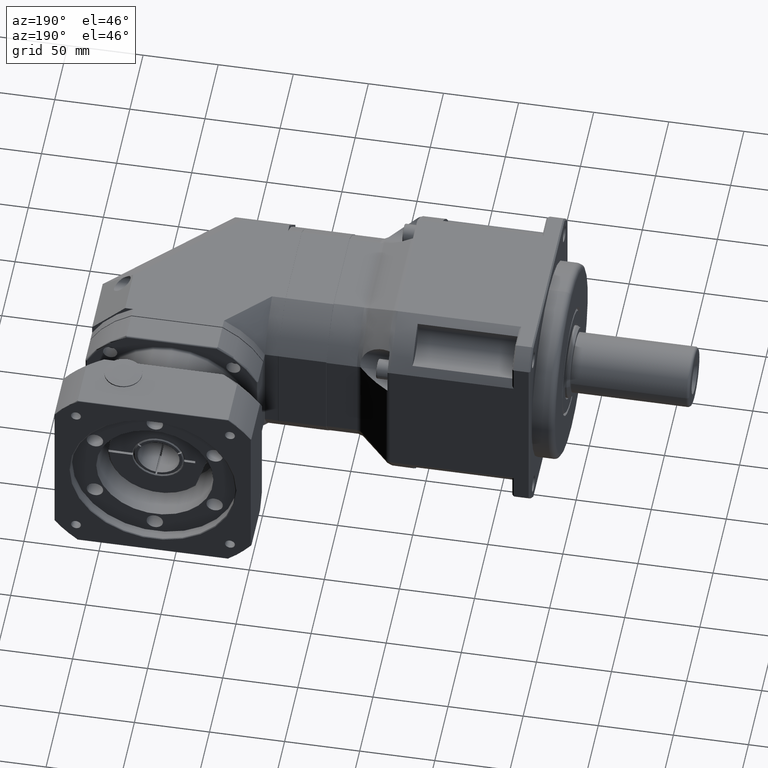
[diagram: clean part render]
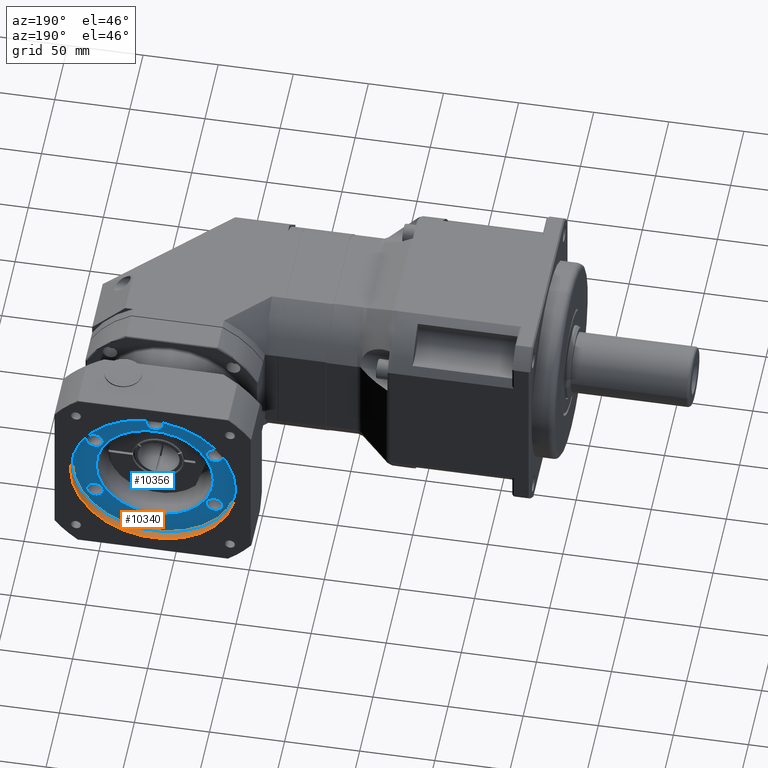
[diagram: same view with the hole feature highlighted: cylindrical wall and planar end face, labeled with their STEP entity ids]
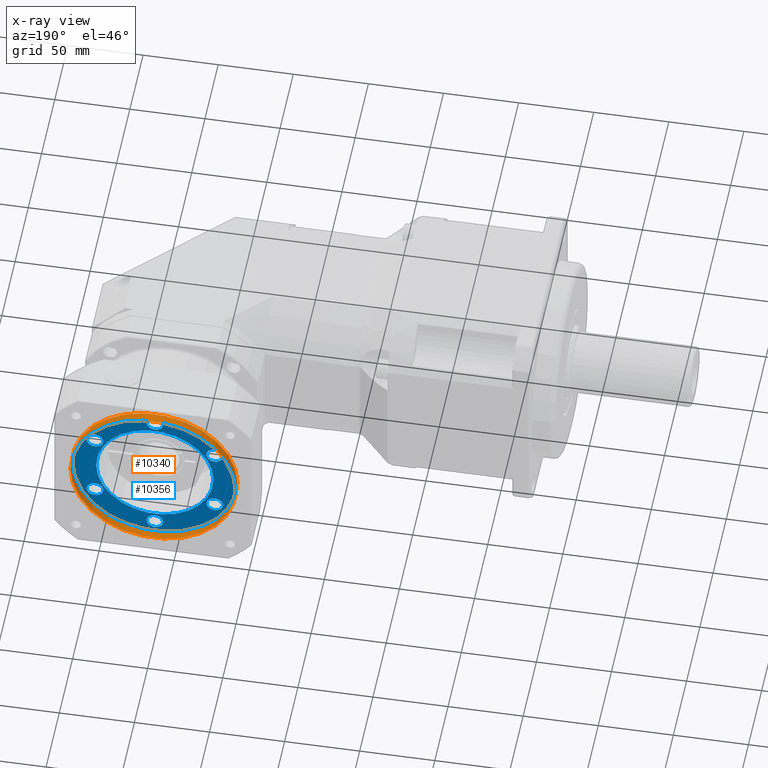
[diagram: x-ray of the same camera — body ghosted, the hole faces saturated]
A machine part, auxiliary view. The highlighted faces form one hole feature of diameter 110 mm: the cylindrical wall (entity #10340, orange) and its adjacent planar end face (entity #10356, blue) — they share a circular edge in the B-rep.
The next image is the same camera in x-ray (body ghosted, the hole faces saturated) — the bore reads through the body.
Wall:
#2075=FACE_BOUND('',#3385,.T.);
#2512=FACE_OUTER_BOUND('',#3384,.T.);
#3384=EDGE_LOOP('',(#7555));
#3385=EDGE_LOOP('',(#7556));
#4264=CIRCLE('',#11341,55.);
#4265=CIRCLE('',#11343,55.);
#4826=VERTEX_POINT('',#16306);
#4827=VERTEX_POINT('',#16309);
#5863=EDGE_CURVE('',#4826,#4826,#4264,.T.);
#5864=EDGE_CURVE('',#4827,#4827,#4265,.T.);
#7555=ORIENTED_EDGE('',*,*,#5864,.T.);
#7556=ORIENTED_EDGE('',*,*,#5863,.F.);
#9494=CYLINDRICAL_SURFACE('',#11342,55.);
#10340=ADVANCED_FACE('',(#2512,#2075),#9494,.F.);
#11341=AXIS2_PLACEMENT_3D('',#16307,#13176,#13177);
#11342=AXIS2_PLACEMENT_3D('',#16308,#13178,#13179);
#11343=AXIS2_PLACEMENT_3D('',#16310,#13180,#13181);
#13176=DIRECTION('center_axis',(2.54626385075064E-16,-1.,7.35343114823502E-15));
#13177=DIRECTION('ref_axis',(-1.,-2.54626385075035E-16,3.92914349137121E-15));
#13178=DIRECTION('center_axis',(2.54626385075064E-16,-1.,7.35343114823502E-15));
#13179=DIRECTION('ref_axis',(1.,2.54626385075035E-16,-3.92914349137121E-15));
#13180=DIRECTION('center_axis',(2.54626385075064E-16,-1.,7.35343114823502E-15));
#13181=DIRECTION('ref_axis',(-3.86134361200479E-15,-7.35343114823502E-15,
-1.));
#16306=CARTESIAN_POINT('',(68.2675868156288,204.141832456553,-114.027779989658));
#16307=CARTESIAN_POINT('Origin',(13.2675868156288,204.141832456553,-114.027779989658));
#16308=CARTESIAN_POINT('Origin',(13.2675868156288,201.141832456553,-114.027779989658));
#16309=CARTESIAN_POINT('',(68.2675868156288,197.641832456553,-114.027779989658));
#16310=CARTESIAN_POINT('Origin',(13.2675868156288,197.641832456553,-114.027779989658));
End face:
#1673=PLANE('',#11370);
#2087=FACE_BOUND('',#3413,.T.);
#2088=FACE_BOUND('',#3414,.T.);
#2089=FACE_BOUND('',#3415,.T.);
#2090=FACE_BOUND('',#3416,.T.);
#2091=FACE_BOUND('',#3417,.T.);
#2092=FACE_BOUND('',#3418,.T.);
#2093=FACE_BOUND('',#3419,.T.);
#2528=FACE_OUTER_BOUND('',#3412,.T.);
#3412=EDGE_LOOP('',(#7583));
#3413=EDGE_LOOP('',(#7584));
#3414=EDGE_LOOP('',(#7585));
#3415=EDGE_LOOP('',(#7586));
#3416=EDGE_LOOP('',(#7587));
#3417=EDGE_LOOP('',(#7588));
#3418=EDGE_LOOP('',(#7589));
#3419=EDGE_LOOP('',(#7590));
#4265=CIRCLE('',#11343,55.);
#4270=CIRCLE('',#11357,5.5);
#4271=CIRCLE('',#11359,5.5);
#4272=CIRCLE('',#11361,5.5);
#4273=CIRCLE('',#11363,5.5);
#4274=CIRCLE('',#11365,5.5);
#4275=CIRCLE('',#11367,5.5);
#4277=CIRCLE('',#11371,39.);
#4827=VERTEX_POINT('',#16309);
#4832=VERTEX_POINT('',#16328);
#4833=VERTEX_POINT('',#16331);
#4834=VERTEX_POINT('',#16334);
#4835=VERTEX_POINT('',#16337);
#4836=VERTEX_POINT('',#16340);
#4837=VERTEX_POINT('',#16343);
#4840=VERTEX_POINT('',#16388);
#5864=EDGE_CURVE('',#4827,#4827,#4265,.T.);
#5869=EDGE_CURVE('',#4832,#4832,#4270,.T.);
#5870=EDGE_CURVE('',#4833,#4833,#4271,.T.);
#5871=EDGE_CURVE('',#4834,#4834,#4272,.T.);
#5872=EDGE_CURVE('',#4835,#4835,#4273,.T.);
#5873=EDGE_CURVE('',#4836,#4836,#4274,.T.);
#5874=EDGE_CURVE('',#4837,#4837,#4275,.T.);
#5877=EDGE_CURVE('',#4840,#4840,#4277,.T.);
#7583=ORIENTED_EDGE('',*,*,#5864,.F.);
#7584=ORIENTED_EDGE('',*,*,#5869,.T.);
#7585=ORIENTED_EDGE('',*,*,#5870,.T.);
#7586=ORIENTED_EDGE('',*,*,#5871,.T.);
#7587=ORIENTED_EDGE('',*,*,#5872,.T.);
#7588=ORIENTED_EDGE('',*,*,#5873,.T.);
#7589=ORIENTED_EDGE('',*,*,#5874,.T.);
#7590=ORIENTED_EDGE('',*,*,#5877,.T.);
#10356=ADVANCED_FACE('',(#2528,#2087,#2088,#2089,#2090,#2091,#2092,#2093),
#1673,.F.);
#11343=AXIS2_PLACEMENT_3D('',#16310,#13180,#13181);
#11357=AXIS2_PLACEMENT_3D('',#16329,#13208,#13209);
#11359=AXIS2_PLACEMENT_3D('',#16332,#13212,#13213);
#11361=AXIS2_PLACEMENT_3D('',#16335,#13216,#13217);
#11363=AXIS2_PLACEMENT_3D('',#16338,#13220,#13221);
#11365=AXIS2_PLACEMENT_3D('',#16341,#13224,#13225);
#11367=AXIS2_PLACEMENT_3D('',#16344,#13228,#13229);
#11370=AXIS2_PLACEMENT_3D('',#16387,#13234,#13235);
#11371=AXIS2_PLACEMENT_3D('',#16389,#13236,#13237);
#13180=DIRECTION('center_axis',(2.54626385075064E-16,-1.,7.35343114823502E-15));
#13181=DIRECTION('ref_axis',(-3.86134361200479E-15,-7.35343114823502E-15,
-1.));
#13208=DIRECTION('center_axis',(2.54626385075064E-16,-1.,7.35343114823502E-15));
#13209=DIRECTION('ref_axis',(-0.866025403784437,3.45620265616872E-15,0.500000000000003));
#13212=DIRECTION('center_axis',(2.54626385075064E-16,-1.,7.35343114823502E-15));
#13213=DIRECTION('ref_axis',(-0.86602540378444,-3.89722849206629E-15,-0.499999999999997));
#13216=DIRECTION('center_axis',(2.54626385075064E-16,-1.,7.35343114823502E-15));
#13217=DIRECTION('ref_axis',(-3.70994956319227E-15,-7.35343114823502E-15,
-1.));
#13220=DIRECTION('center_axis',(2.54626385075064E-16,-1.,7.35343114823502E-15));
#13221=DIRECTION('ref_axis',(0.866025403784437,-3.45620265616873E-15,-0.500000000000003));
#13224=DIRECTION('center_axis',(2.54626385075064E-16,-1.,7.35343114823502E-15));
#13225=DIRECTION('ref_axis',(0.866025403784441,3.89722849206629E-15,0.499999999999997));
#13228=DIRECTION('center_axis',(2.54626385075064E-16,-1.,7.35343114823502E-15));
#13229=DIRECTION('ref_axis',(3.86134361200479E-15,7.35343114823502E-15,
1.));
#13234=DIRECTION('center_axis',(2.54626385075064E-16,-1.,7.35343114823502E-15));
#13235=DIRECTION('ref_axis',(-3.5527136788005E-15,-8.5265128291212E-15,
-1.));
#13236=DIRECTION('center_axis',(2.54626385075064E-16,-1.,7.35343114823502E-15));
#13237=DIRECTION('ref_axis',(-3.86134361200479E-15,-7.35343114823502E-15,
-1.));
#16309=CARTESIAN_POINT('',(68.2675868156288,197.641832456553,-114.027779989658));
#16310=CARTESIAN_POINT('Origin',(13.2675868156288,197.641832456553,-114.027779989658));
#16328=CARTESIAN_POINT('',(-31.3327214792698,197.641832456554,-88.2777799896574));
#16329=CARTESIAN_POINT('Origin',(-26.5695817584554,197.641832456554,-91.0277799896575));
#16331=CARTESIAN_POINT('',(-31.3327214792699,197.641832456553,-139.777779989657));
#16332=CARTESIAN_POINT('Origin',(-26.5695817584555,197.641832456553,-137.027779989657));
#16334=CARTESIAN_POINT('',(13.2675868156286,197.641832456553,-165.527779989658));
#16335=CARTESIAN_POINT('Origin',(13.2675868156286,197.641832456553,-160.027779989658));
#16337=CARTESIAN_POINT('',(57.8678951105273,197.641832456553,-139.777779989658));
#16338=CARTESIAN_POINT('Origin',(53.1047553897129,197.641832456553,-137.027779989658));
#16340=CARTESIAN_POINT('',(57.8678951105274,197.641832456554,-88.2777799896577));
#16341=CARTESIAN_POINT('Origin',(53.104755389713,197.641832456554,-91.0277799896577));
#16343=CARTESIAN_POINT('',(13.267586815629,197.641832456554,-62.5277799896576));
#16344=CARTESIAN_POINT('Origin',(13.2675868156289,197.641832456554,-68.0277799896576));
#16387=CARTESIAN_POINT('Origin',(52.2675868156288,197.641832456553,-114.027779989658));
#16388=CARTESIAN_POINT('',(52.2675868156288,197.641832456553,-114.027779989658));
#16389=CARTESIAN_POINT('Origin',(13.2675868156288,197.641832456553,-114.027779989658));